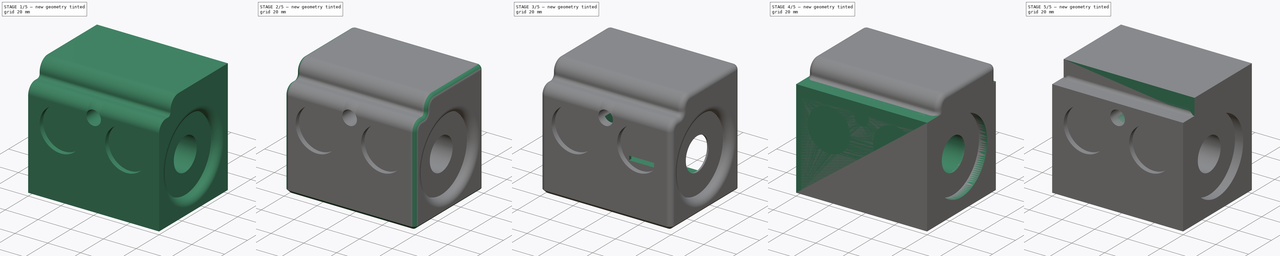
[diagram: build sequence overview — one tinted view per stage of 5, left to right]
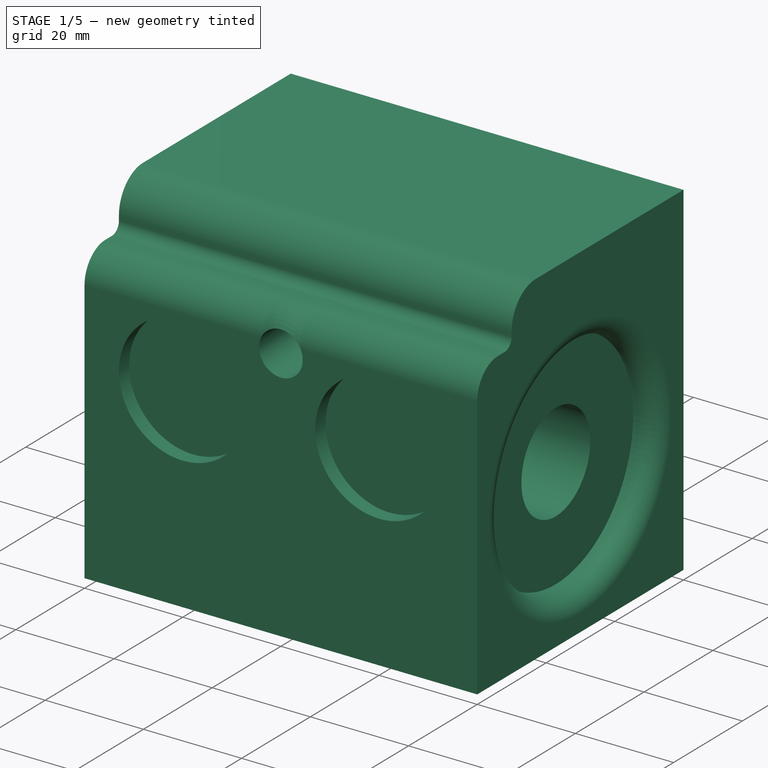
[diagram: stage 1 of 5 — iso view after this stage's code; geometry added in this stage tinted green]
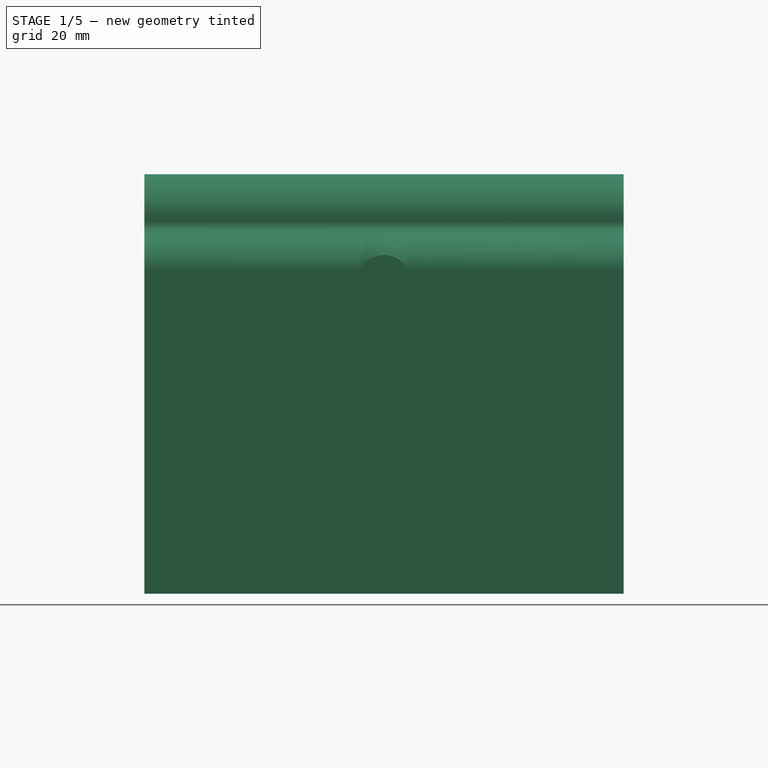
[diagram: stage 1 of 5 — front view after this stage's code; geometry added in this stage tinted green]
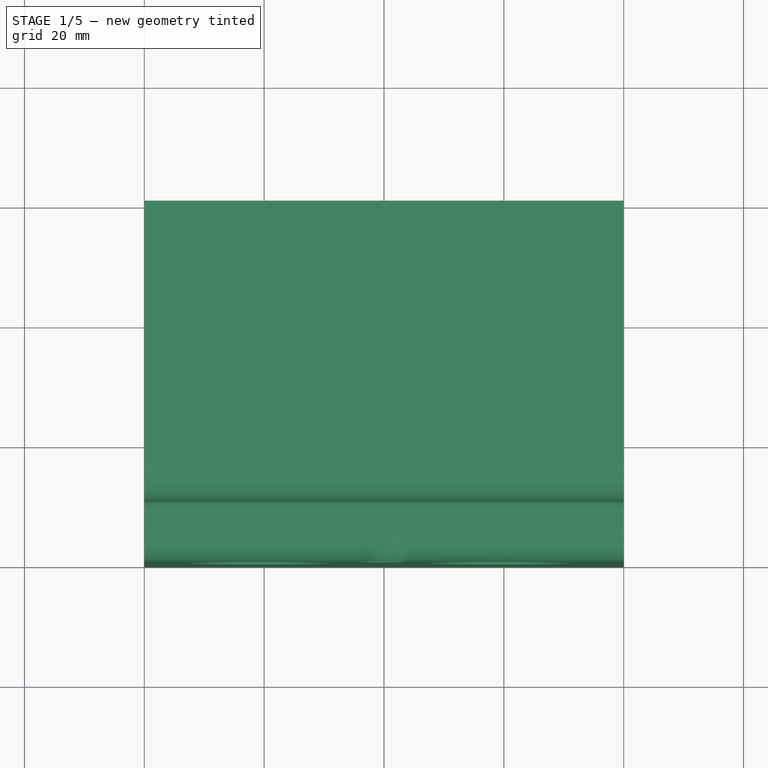
[diagram: stage 1 of 5 — top view after this stage's code; geometry added in this stage tinted green]
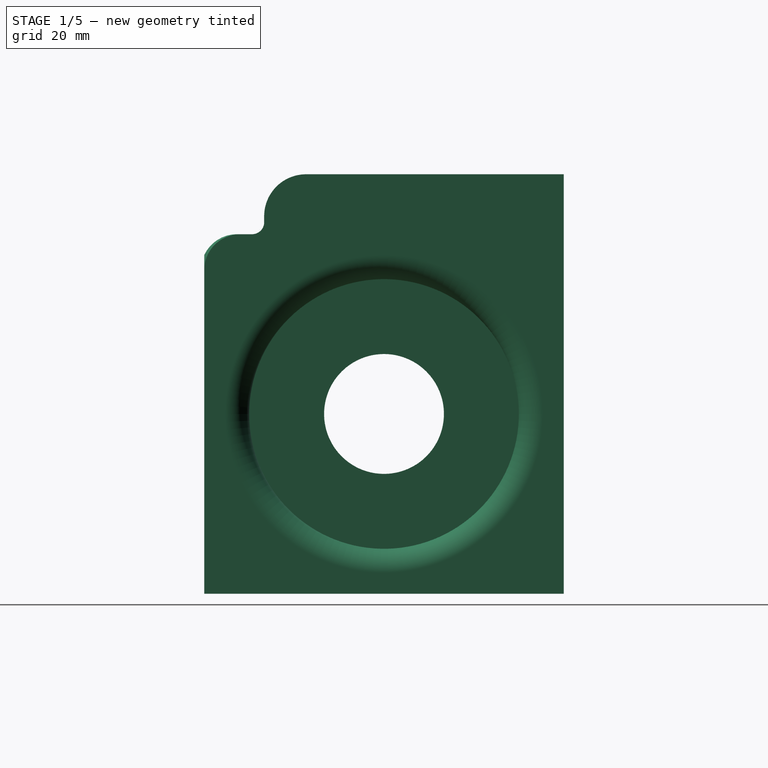
[diagram: stage 1 of 5 — right view after this stage's code; geometry added in this stage tinted green]
FCSTD DOCUMENT  (FreeCAD 0.16R6710 (Git))
Label: cabeza_v5
License: All rights reserved
LicenseURL: http://en.wikipedia.org/wiki/All_rights_reserved
objects: Sketcher::SketchObject×12, PartDesign::Pocket×10, PartDesign::Fillet×8, PartDesign::Pad×2, Part::Box×1, Part::Feature×1, PartDesign::Chamfer×1
note: 47 computed .brp shape members not serialized (recipe doc carries the construction recipe); baked Part::Feature solids carry a one-line shape summary decoded from their .brp

FEATURE [Part::Feature] Pocket004001  label="Pocket005"
  shape: bbox 80 x 60 x 70 mm, 19 faces (baked)
FEATURE [PartDesign::Fillet] Fillet
  Base = -> Pocket004001 [Edge21]
  Radius = 7
FEATURE [PartDesign::Fillet] Fillet001
  Base = -> Fillet [Edge3]
  Radius = 2
FEATURE [PartDesign::Fillet] Fillet002
  Base = -> Fillet001 [Edge23]
  Radius = 6
FEATURE [PartDesign::Fillet] Fillet003
  Base = -> Fillet002 [Edge10]
  Radius = 4
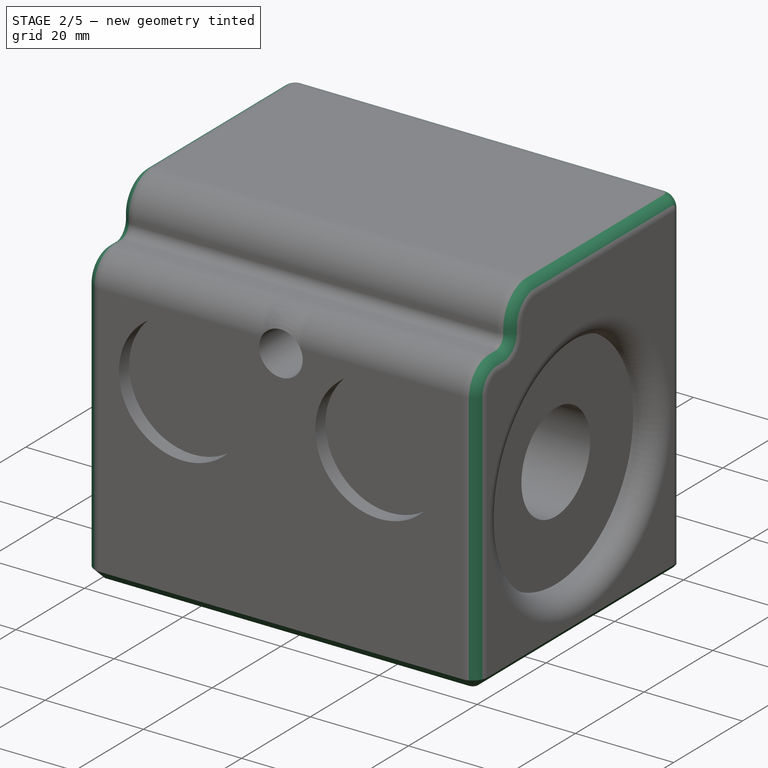
[diagram: stage 2 of 5 — iso view after this stage's code; geometry added in this stage tinted green]
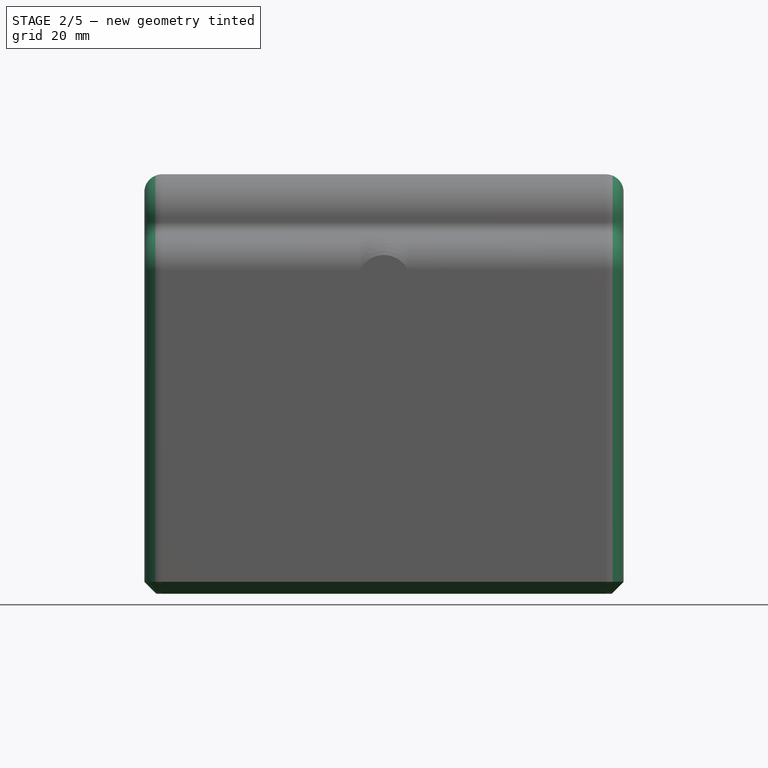
[diagram: stage 2 of 5 — front view after this stage's code; geometry added in this stage tinted green]
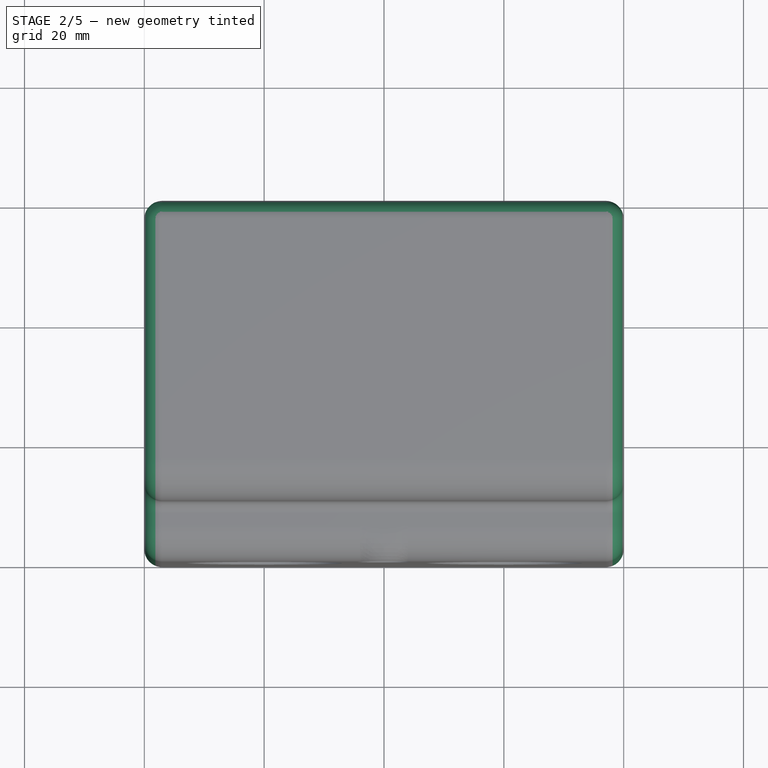
[diagram: stage 2 of 5 — top view after this stage's code; geometry added in this stage tinted green]
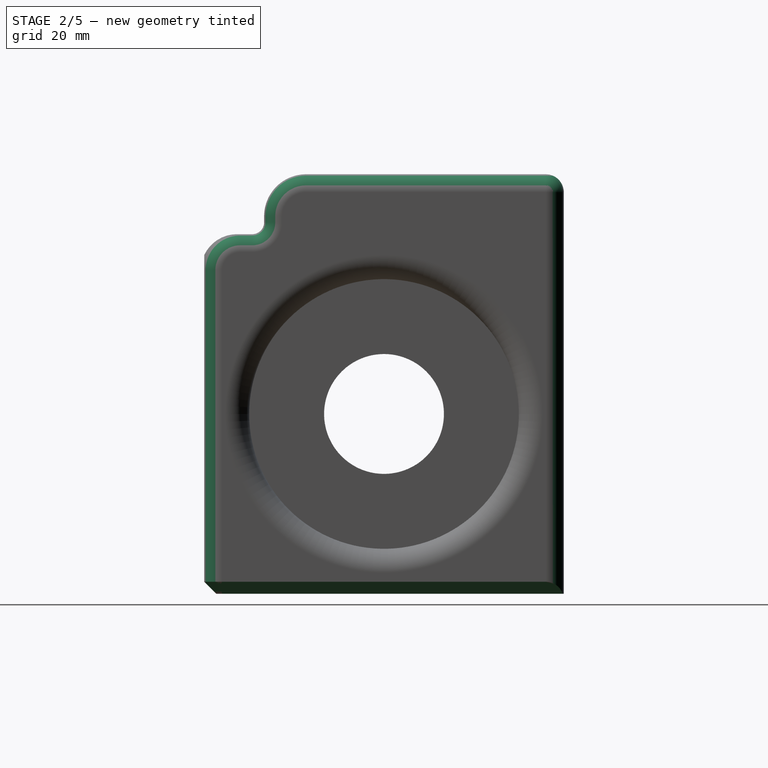
[diagram: stage 2 of 5 — right view after this stage's code; geometry added in this stage tinted green]
FEATURE [PartDesign::Fillet] Fillet004
  Base = -> Fillet003 [Edge41]
  Radius = 4
FEATURE [PartDesign::Fillet] Fillet005
  Base = -> Fillet004 [Edge22]
  Radius = 3
FEATURE [PartDesign::Fillet] Fillet006
  Base = -> Fillet005 [Edge15]
  Radius = 3
FEATURE [PartDesign::Chamfer] Chamfer
  Base = -> Fillet006 [Edge41]
  Size = 2
FEATURE [PartDesign::Fillet] Fillet007
  Base = -> Chamfer [Edge21]
  Radius = 3
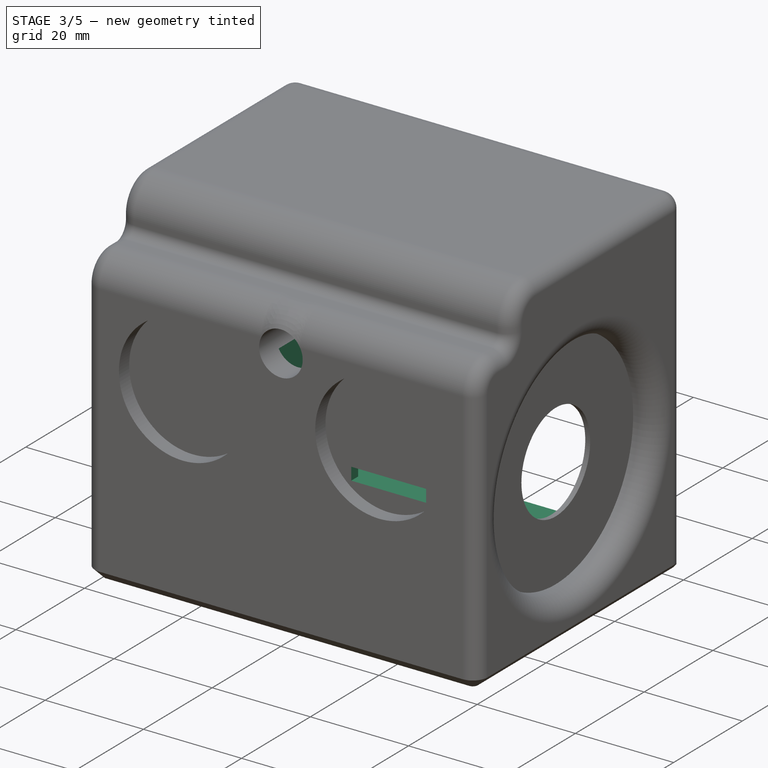
[diagram: stage 3 of 5 — iso view after this stage's code; geometry added in this stage tinted green]
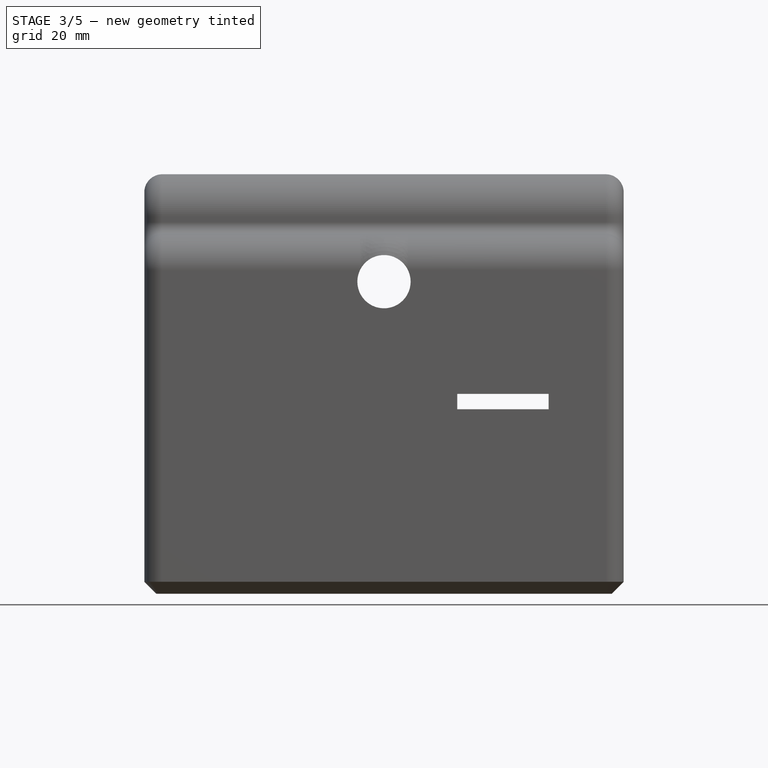
[diagram: stage 3 of 5 — front view after this stage's code; geometry added in this stage tinted green]
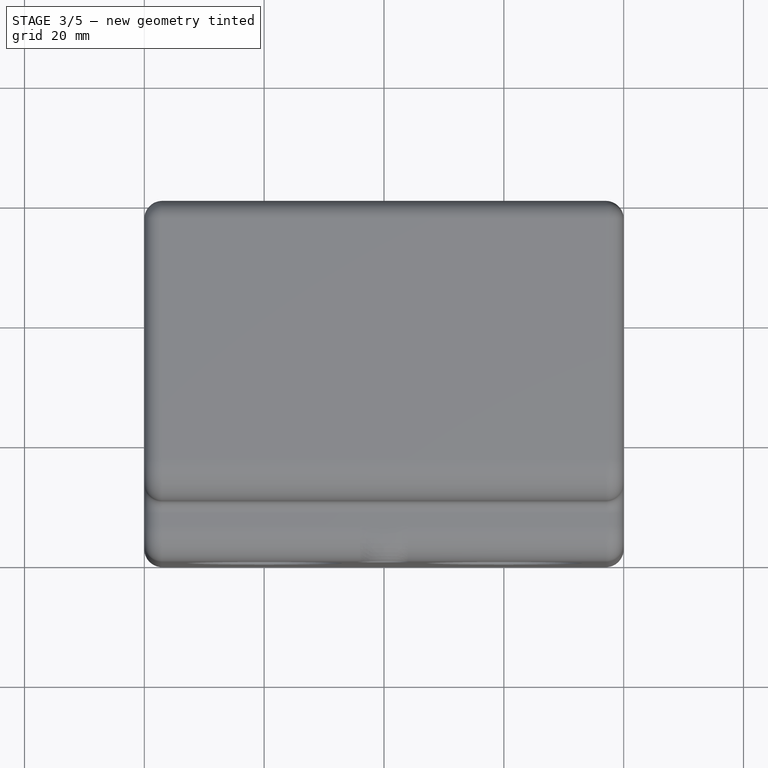
[diagram: stage 3 of 5 — top view after this stage's code; geometry added in this stage tinted green]
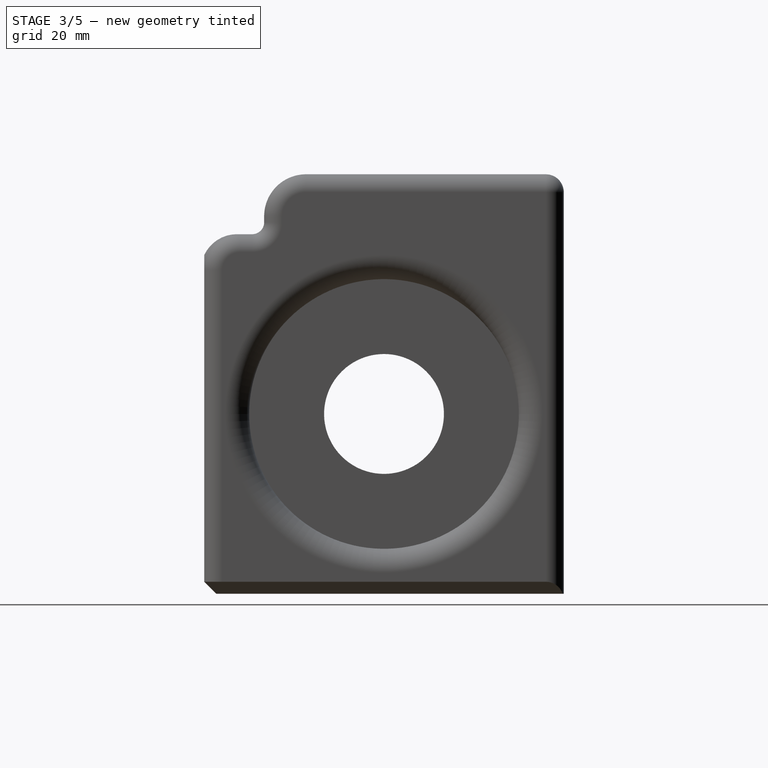
[diagram: stage 3 of 5 — right view after this stage's code; geometry added in this stage tinted green]
FEATURE [Sketcher::SketchObject] Sketch006
  ExternalGeometry = -> [Fillet007]
  Placement = pos=(0,60,0) rot=(0,0.707107,0.707107;3.14159rad)
  Support = -> Fillet007 [Face15]
  sketch-geometry (4):
    g0: LineSegment StartX=-74 StartY=64 StartZ=0 EndX=-6 EndY=64 EndZ=0
    g1: LineSegment StartX=-6 StartY=64 StartZ=0 EndX=-6 EndY=4 EndZ=0
    g2: LineSegment StartX=-6 StartY=4 StartZ=0 EndX=-74 EndY=4 EndZ=0
    g3: LineSegment StartX=-74 StartY=4 StartZ=0 EndX=-74 EndY=64 EndZ=0
  constraints (12):
    c: Coincident(g0,g1)
    c: Coincident(g1,g2)
    c: Coincident(g2,g3)
    c: Coincident(g3,g0)
    c: Horizontal(g0)
    c: Horizontal(g2)
    c: Vertical(g1)
    c: Vertical(g3)
    c: Distance(g0,g-5) = 3
    c: Distance(g0,g-3) = 3
    c: Distance(g0,g-4) = 3
    c: DistanceY(g-1,g1) = 4
FEATURE [PartDesign::Pocket] Pocket004002
  Length = 49
  Sketch = -> Sketch006
  Type = 0
FEATURE [Sketcher::SketchObject] Sketch007
  ExternalGeometry = -> [Pocket004002]
  Placement = pos=(0,11,0) rot=(0,0.707107,0.707107;3.14159rad)
  Support = -> Pocket004002 [Face49]
  sketch-geometry (4):
    g0: LineSegment StartX=-74 StartY=50.0354 StartZ=0 EndX=-6 EndY=50.0354 EndZ=0
    g1: LineSegment StartX=-6 StartY=50.0354 StartZ=0 EndX=-6 EndY=3 EndZ=0
    g2: LineSegment StartX=-6 StartY=3 StartZ=0 EndX=-74 EndY=3 EndZ=0
    g3: LineSegment StartX=-74 StartY=3 StartZ=0 EndX=-74 EndY=50.0354 EndZ=0
  constraints (11):
    c: Coincident(g0,g1)
    c: Coincident(g1,g2)
    c: Coincident(g2,g3)
    c: Coincident(g3,g0)
    c: Horizontal(g0)
    c: Horizontal(g2)
    c: Vertical(g1)
    c: Vertical(g3)
    c: PointOnObject(g0,g-4)
    c: PointOnObject(g0,g-3)
    c: Distance(g1,g-4) = 3
FEATURE [PartDesign::Pocket] Pocket004003
  Length = 6
  Sketch = -> Sketch007
  Type = 0
FEATURE [Sketcher::SketchObject] Sketch008
  Placement = pos=(0,3,0) rot=(1,0,0;1.5708rad)
  Support = -> Pocket004003 [Face57]
  sketch-geometry (4):
    g0: LineSegment StartX=52.2281 StartY=33.3548 StartZ=0 EndX=67.4775 EndY=33.3548 EndZ=0
    g1: LineSegment StartX=67.4775 StartY=33.3548 StartZ=0 EndX=67.4775 EndY=30.7881 EndZ=0
    g2: LineSegment StartX=67.4775 StartY=30.7881 StartZ=0 EndX=52.2281 EndY=30.7881 EndZ=0
    g3: LineSegment StartX=52.2281 StartY=30.7881 StartZ=0 EndX=52.2281 EndY=33.3548 EndZ=0
  constraints (8):
    c: Coincident(g0,g1)
    c: Coincident(g1,g2)
    c: Coincident(g2,g3)
    c: Coincident(g3,g0)
    c: Horizontal(g0)
    c: Horizontal(g2)
    c: Vertical(g1)
    c: Vertical(g3)
FEATURE [PartDesign::Pocket] Pocket004004
  Length = 5
  Sketch = -> Sketch008
  Type = 0
FEATURE [Sketcher::SketchObject] Sketch009
  ExternalGeometry = -> [Pocket004004]
  Placement = pos=(0,0,0) rot=(1,0,0;3.14159rad)
  Support = -> Pocket004004 [Face13]
  sketch-geometry (3):
    g0: LineSegment [constr] StartX=2 StartY=-3 StartZ=0 EndX=77 EndY=-60 EndZ=0
    g1: LineSegment [constr] StartX=78 StartY=-3 StartZ=0 EndX=3 EndY=-60 EndZ=0
    g2: Circle CenterX=40 CenterY=-31.88 CenterZ=0 NormalX=0 NormalY=0 NormalZ=1 Radius=4
  constraints (7):
    c: Coincident(g0,g-3)
    c: Coincident(g0,g-5)
    c: Coincident(g1,g-6)
    c: Coincident(g1,g-5)
    c: PointOnObject(g2,g0)
    c: PointOnObject(g2,g1)
    c: Radius(g2) = 4
FEATURE [PartDesign::Pocket] Pocket004005
  Length = 5
  Sketch = -> Sketch009
  Type = 0
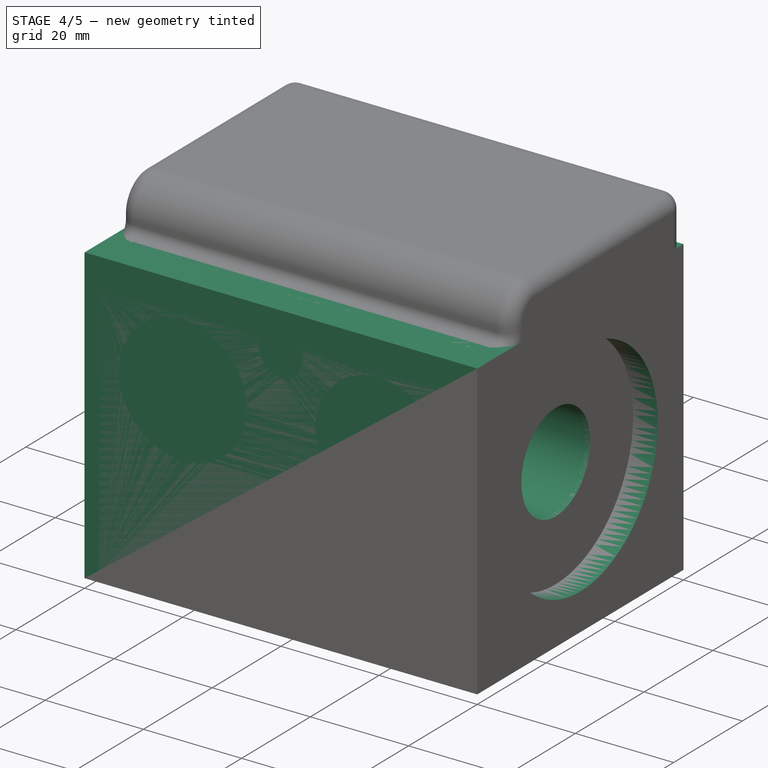
[diagram: stage 4 of 5 — iso view after this stage's code; geometry added in this stage tinted green]
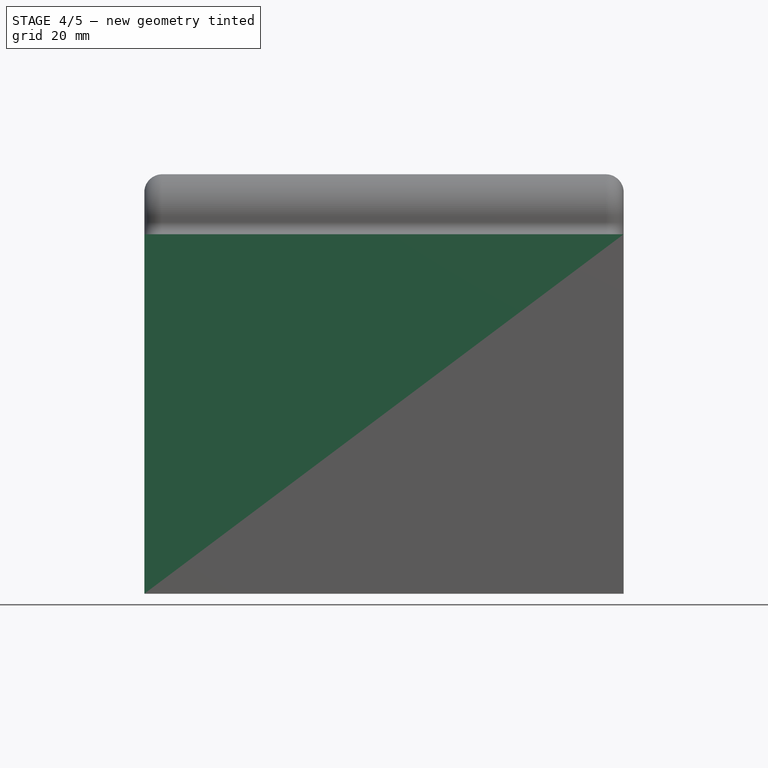
[diagram: stage 4 of 5 — front view after this stage's code; geometry added in this stage tinted green]
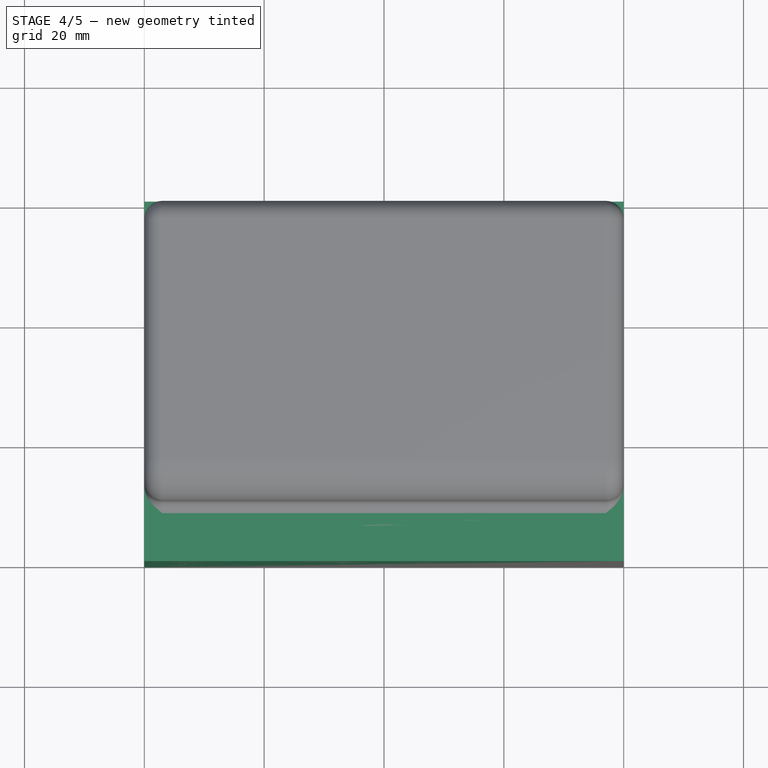
[diagram: stage 4 of 5 — top view after this stage's code; geometry added in this stage tinted green]
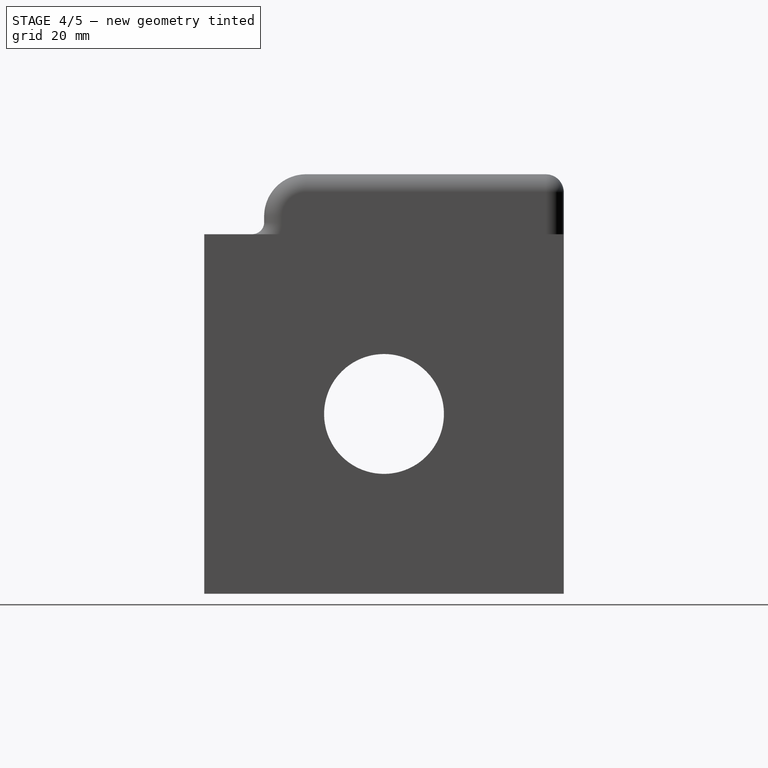
[diagram: stage 4 of 5 — right view after this stage's code; geometry added in this stage tinted green]
FEATURE [Part::Box] Box  label="Cubo"
  Height = 60
  Length = 80
  Width = 60
FEATURE [Sketcher::SketchObject] Sketch
  ExternalGeometry = -> [Box]
  Placement = pos=(80,0,0) rot=(0.57735,0.57735,0.57735;2.0944rad)
  Support = -> Box [Face2]
  sketch-geometry (3):
    g0: Circle CenterX=30 CenterY=30 CenterZ=0 NormalX=0 NormalY=0 NormalZ=1 Radius=22.5
    g1: LineSegment [constr] StartX=0 StartY=60 StartZ=0 EndX=60 EndY=0 EndZ=0
    g2: LineSegment [constr] StartX=60 StartY=60 StartZ=0 EndX=0 EndY=0 EndZ=0
  constraints (7):
    c: Radius(g0) = 22.5
    c: Coincident(g1,g-3)
    c: Coincident(g1,g-4)
    c: Coincident(g2,g-4)
    c: Coincident(g2,g-1)
    c: PointOnObject(g0,g1)
    c: PointOnObject(g0,g2)
FEATURE [PartDesign::Pocket] Pocket
  Length = 5
  Sketch = -> Sketch
  Type = 0
FEATURE [Sketcher::SketchObject] Sketch001
  ExternalGeometry = -> [Pocket]
  Placement = pos=(75,0,0) rot=(0.57735,0.57735,0.57735;2.0944rad)
  Support = -> Pocket [Face8]
  sketch-geometry (1):
    g0: Circle CenterX=30 CenterY=30 CenterZ=0 NormalX=0 NormalY=0 NormalZ=1 Radius=10
  constraints (2):
    c: Coincident(g-3,g0)
    c: Radius(g0) = 10
FEATURE [PartDesign::Pocket] Pocket001
  Length = 5
  Sketch = -> Sketch001
  Type = 1
FEATURE [Sketcher::SketchObject] Sketch010
  Placement = pos=(0,0,4) rot=(0,0,1;0rad)
  Support = -> Pocket004005 [Face32]
  sketch-geometry (4):
    g0: LineSegment StartX=34.5595 StartY=50.3477 StartZ=0 EndX=45.6923 EndY=50.3477 EndZ=0
    g1: LineSegment StartX=45.6923 StartY=50.3477 StartZ=0 EndX=45.6923 EndY=35.0653 EndZ=0
    g2: LineSegment StartX=45.6923 StartY=35.0653 StartZ=0 EndX=34.5595 EndY=35.0653 EndZ=0
    g3: LineSegment StartX=34.5595 StartY=35.0653 StartZ=0 EndX=34.5595 EndY=50.3477 EndZ=0
  constraints (8):
    c: Coincident(g0,g1)
    c: Coincident(g1,g2)
    c: Coincident(g2,g3)
    c: Coincident(g3,g0)
    c: Horizontal(g0)
    c: Horizontal(g2)
    c: Vertical(g1)
    c: Vertical(g3)
FEATURE [PartDesign::Pad] Pad001
  Length = 10
  Length2 = 100
  Sketch = -> Sketch010
  Type = 0
FEATURE [Sketcher::SketchObject] Sketch011
  ExternalGeometry = -> [Pad001]
  Placement = pos=(0,50.3477,0) rot=(0,0.707107,0.707107;3.14159rad)
  Support = -> Pad001 [Face55]
  sketch-geometry (4):
    g0: LineSegment StartX=-44.3398 StartY=4 StartZ=0 EndX=-35.7297 EndY=4 EndZ=0
    g1: LineSegment StartX=-35.7297 StartY=4 StartZ=0 EndX=-35.7297 EndY=12.6141 EndZ=0
    g2: LineSegment StartX=-35.7297 StartY=12.6141 StartZ=0 EndX=-44.3398 EndY=12.6141 EndZ=0
    g3: LineSegment StartX=-44.3398 StartY=12.6141 StartZ=0 EndX=-44.3398 EndY=4 EndZ=0
  constraints (9):
    c: Coincident(g0,g1)
    c: Coincident(g1,g2)
    c: Coincident(g2,g3)
    c: Coincident(g3,g0)
    c: Horizontal(g0)
    c: Horizontal(g2)
    c: Vertical(g1)
    c: Vertical(g3)
    c: PointOnObject(g0,g-3)
FEATURE [PartDesign::Pocket] Pocket004006
  Length = 17
  Sketch = -> Sketch011
  Type = 0
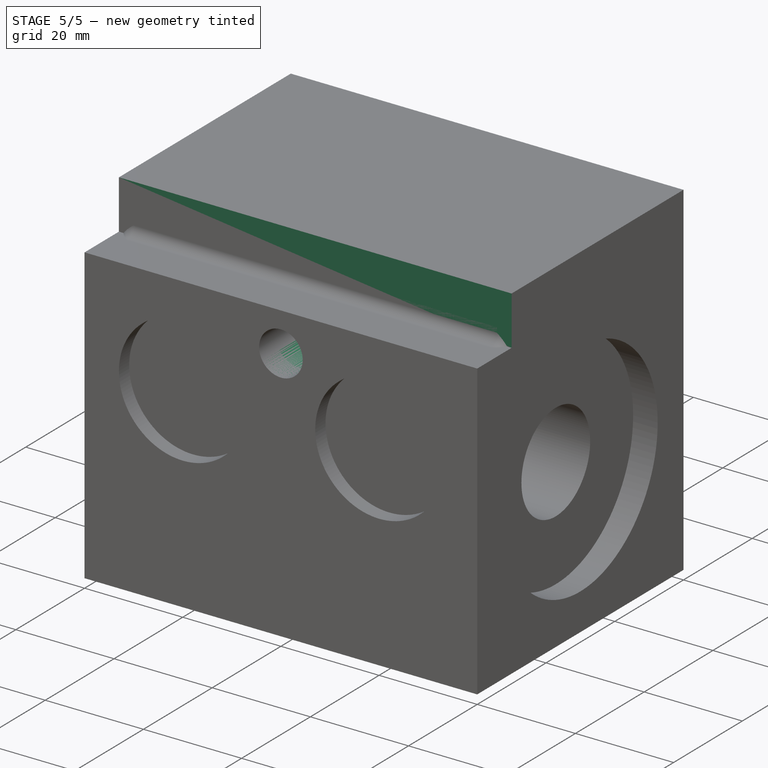
[diagram: stage 5 of 5 — iso view after this stage's code; geometry added in this stage tinted green]
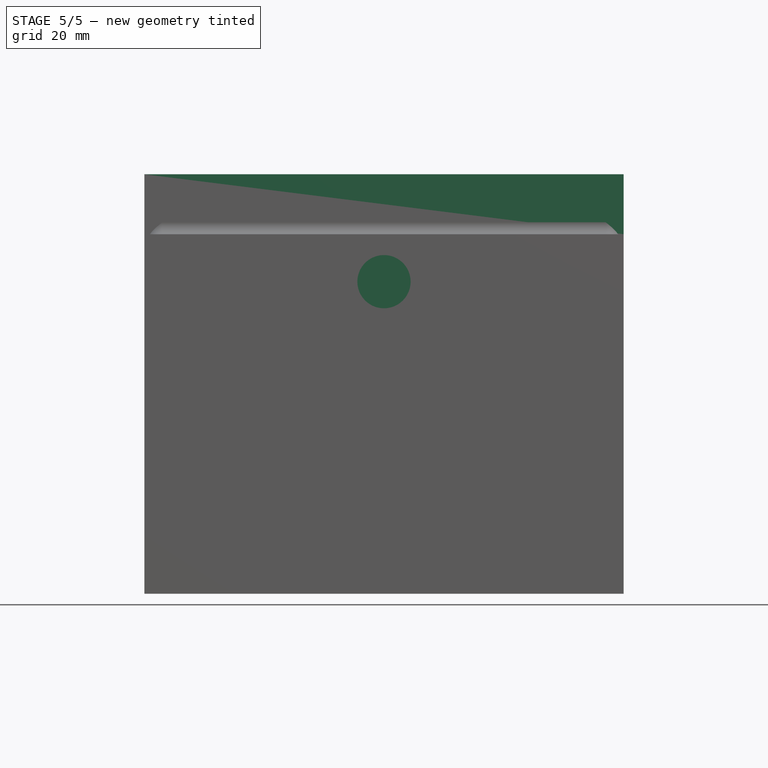
[diagram: stage 5 of 5 — front view after this stage's code; geometry added in this stage tinted green]
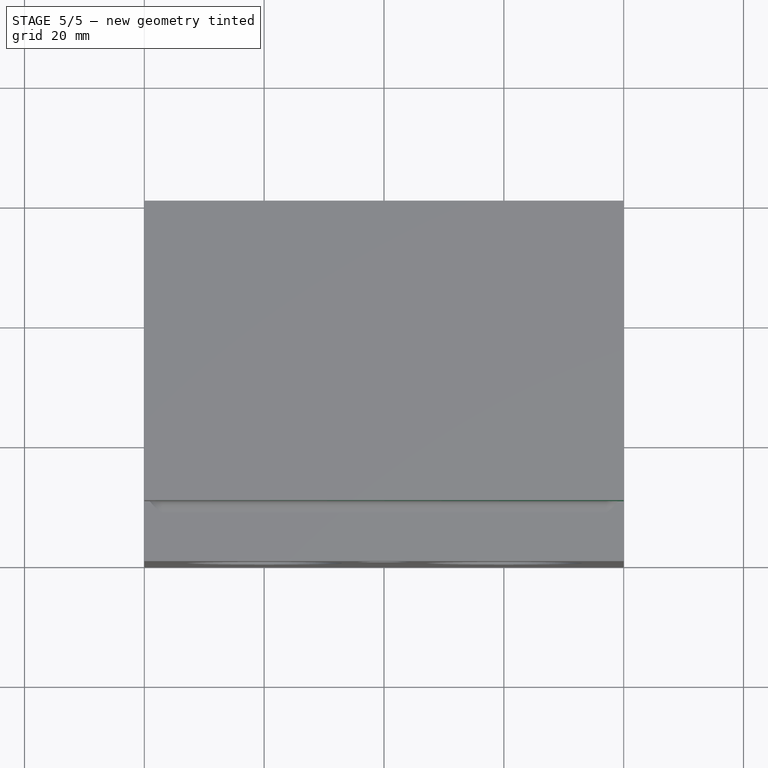
[diagram: stage 5 of 5 — top view after this stage's code; geometry added in this stage tinted green]
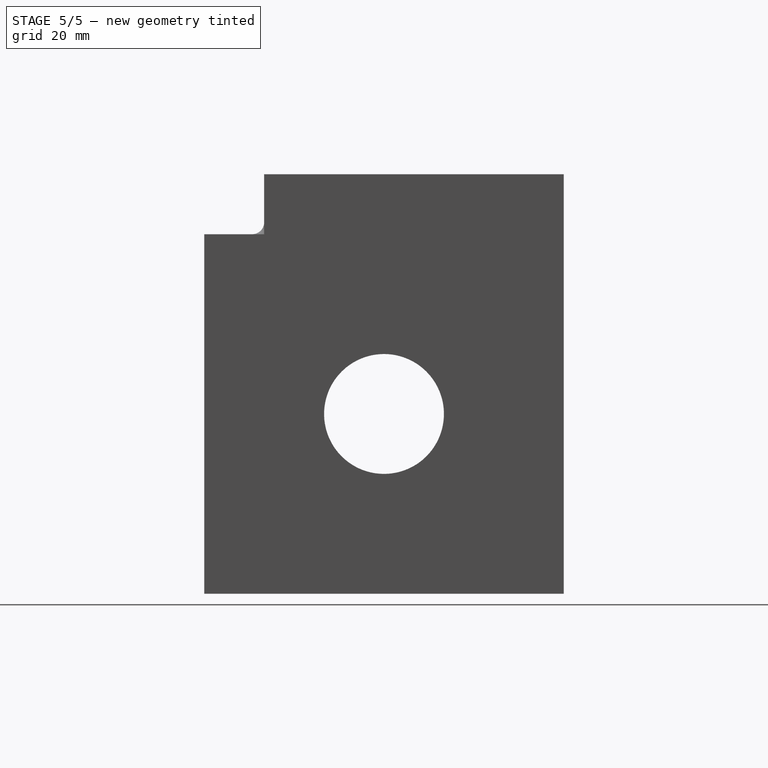
[diagram: stage 5 of 5 — right view after this stage's code; geometry added in this stage tinted green]
FEATURE [Sketcher::SketchObject] Sketch002
  ExternalGeometry = -> [Pocket001]
  Placement = pos=(0,0,0) rot=(0.57735,-0.57735,-0.57735;2.0944rad)
  Support = -> Pocket001 [Face1]
  sketch-geometry (1):
    g0: Circle CenterX=-30 CenterY=30 CenterZ=0 NormalX=0 NormalY=0 NormalZ=1 Radius=22.5
  constraints (2):
    c: Coincident(g0,g-3)
    c: Radius(g0) = 22.5
FEATURE [PartDesign::Pocket] Pocket002
  Length = 5
  Sketch = -> Sketch002
  Type = 0
FEATURE [Sketcher::SketchObject] Sketch003
  ExternalGeometry = -> [Pocket002]
  Placement = pos=(0,0,0) rot=(1,0,0;1.5708rad)
  Support = -> Pocket002 [Face2]
  sketch-geometry (3):
    g0: Circle CenterX=20 CenterY=40 CenterZ=0 NormalX=0 NormalY=0 NormalZ=1 Radius=13
    g1: Circle CenterX=60 CenterY=40 CenterZ=0 NormalX=0 NormalY=0 NormalZ=1 Radius=13
    g2: LineSegment [constr] StartX=0 StartY=40 StartZ=0 EndX=80 EndY=40 EndZ=0
  constraints (10):
    c: Radius(g0) = 13
    c: Equal(g0,g1)
    c: PointOnObject(g2,g-2)
    c: PointOnObject(g2,g-3)
    c: Horizontal(g2)
    c: PointOnObject(g1,g2)
    c: PointOnObject(g0,g2)
    c: Distance(g0,g2) = 20
    c: Distance(g1,g2) = 20
    c: Distance(g2,g-3) = 40
FEATURE [PartDesign::Pocket] Pocket003
  Length = 3
  Sketch = -> Sketch003
  Type = 0
FEATURE [Sketcher::SketchObject] Sketch004
  ExternalGeometry = -> [Pocket003]
  Placement = pos=(0,0,60) rot=(0,0,1;0rad)
  Support = -> Pocket003 [Face3]
  sketch-geometry (4):
    g0: LineSegment StartX=0 StartY=60 StartZ=0 EndX=80 EndY=60 EndZ=0
    g1: LineSegment StartX=80 StartY=60 StartZ=0 EndX=80 EndY=10 EndZ=0
    g2: LineSegment StartX=80 StartY=10 StartZ=0 EndX=0 EndY=10 EndZ=0
    g3: LineSegment StartX=0 StartY=10 StartZ=0 EndX=0 EndY=60 EndZ=0
  constraints (11):
    c: Coincident(g0,g1)
    c: Coincident(g1,g2)
    c: Coincident(g2,g3)
    c: Coincident(g3,g0)
    c: Horizontal(g0)
    c: Horizontal(g2)
    c: Vertical(g1)
    c: Vertical(g3)
    c: Coincident(g0,g-3)
    c: PointOnObject(g1,g-4)
    c: DistanceY(g3,g3) = 50
FEATURE [PartDesign::Pad] Pad
  Length = 10
  Length2 = 100
  Sketch = -> Sketch004
  Type = 0
FEATURE [Sketcher::SketchObject] Sketch005
  Placement = pos=(0,0,0) rot=(1,0,0;1.5708rad)
  Support = -> Pad [Face1]
  sketch-geometry (1):
    g0: Circle CenterX=39.9981 CenterY=52.0768 CenterZ=0 NormalX=0 NormalY=0 NormalZ=1 Radius=4.44057
FEATURE [PartDesign::Pocket] Pocket004
  Length = 13
  Sketch = -> Sketch005
  Type = 0
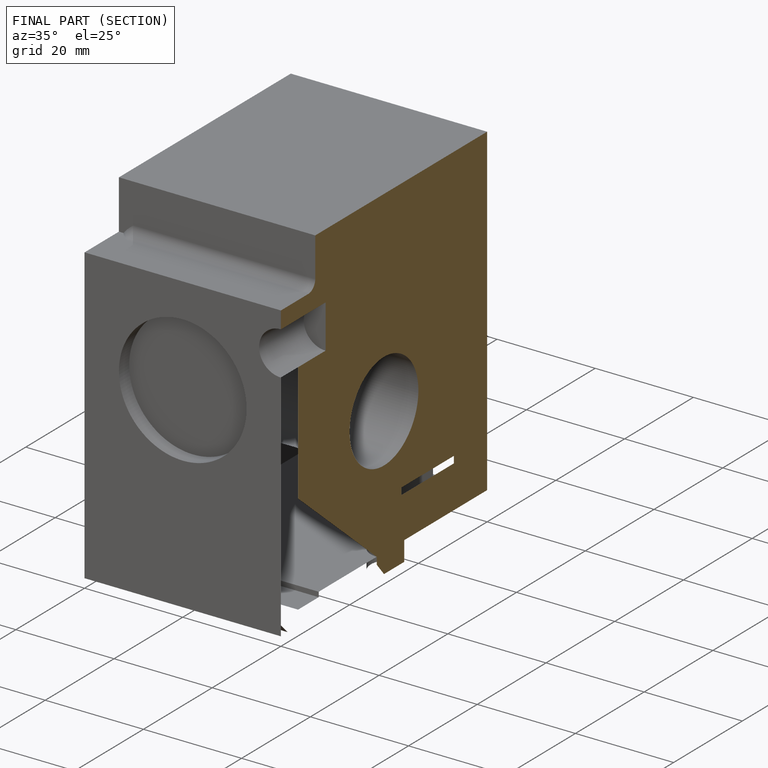
[diagram: finished part — half-section view (interior)]
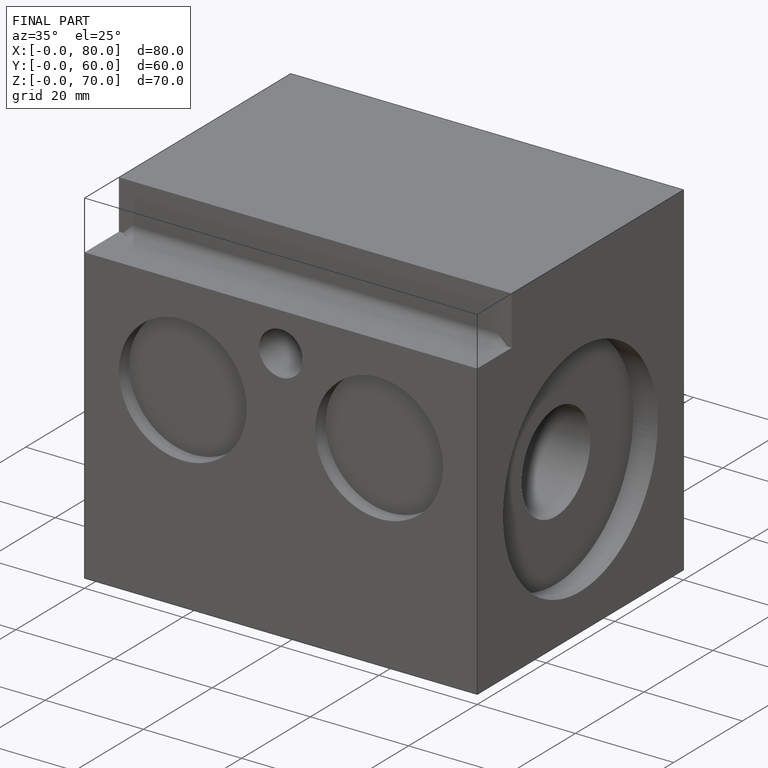
[diagram: finished part — iso view with bounding-box wireframe]
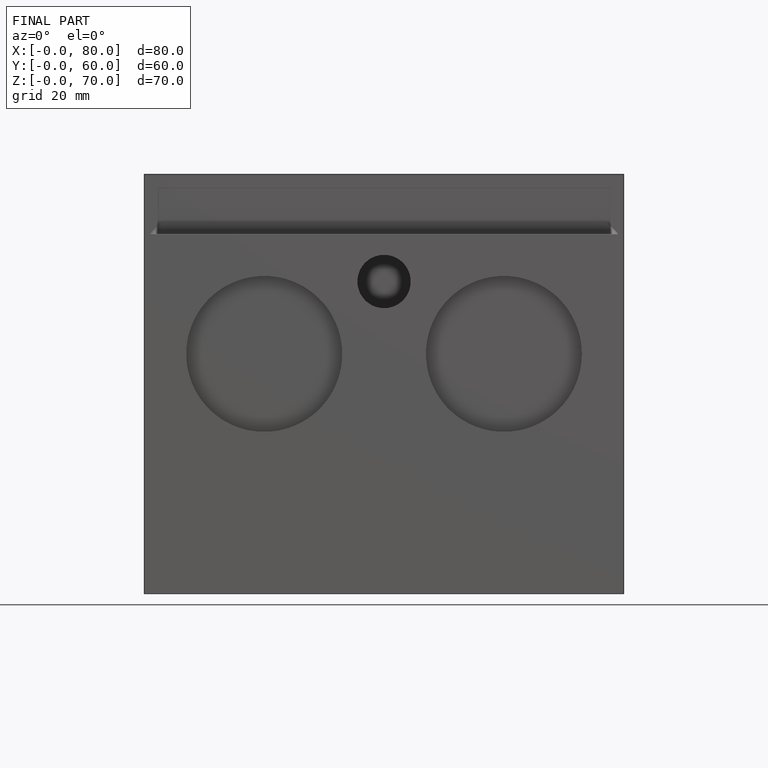
[diagram: finished part — front view with bounding-box wireframe]
